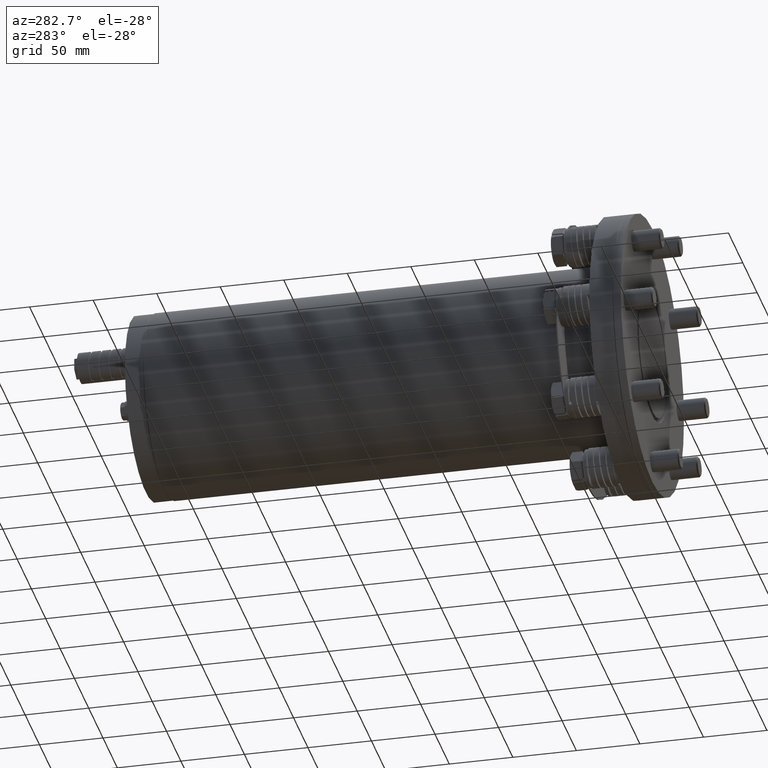
[diagram: clean part render]
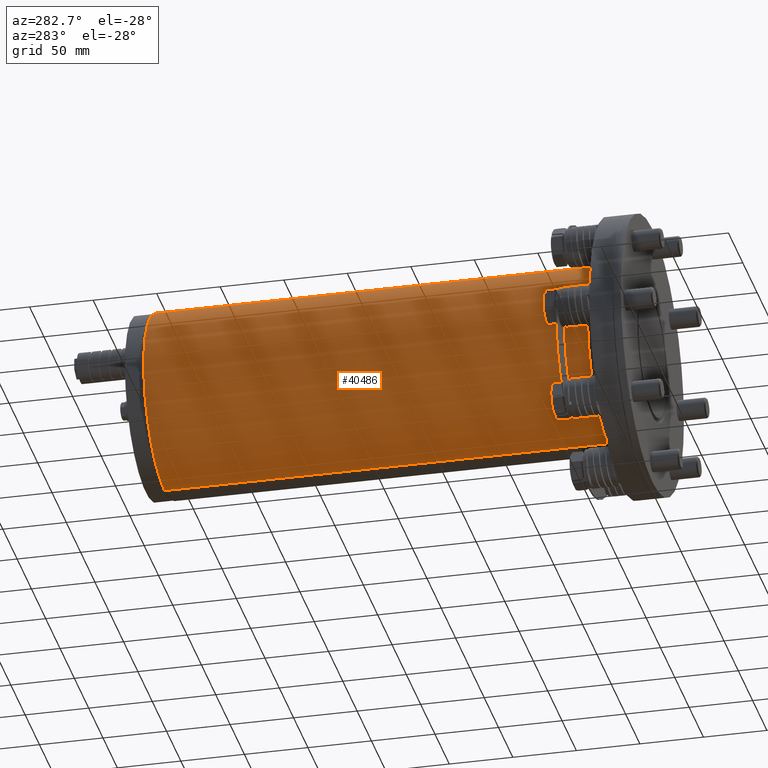
[diagram: same view with one face highlighted and labeled with its STEP entity id]
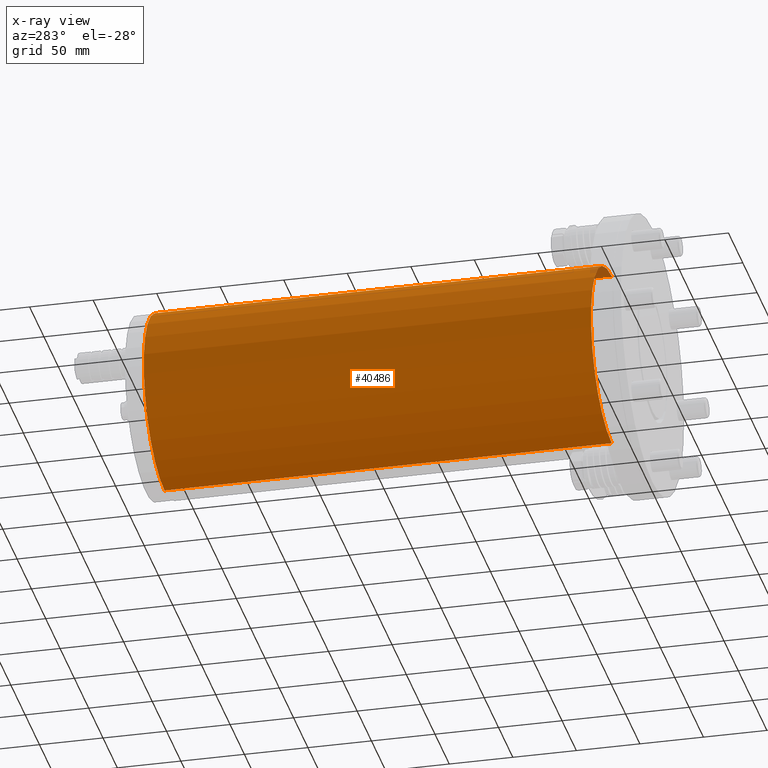
[diagram: x-ray of the same camera — body ghosted, the highlighted face saturated]
A machine part, auxiliary view. The second image highlights one B-rep face of the part: STEP entity #40486.
The next image is the same camera in x-ray: the body ghosted, the highlighted face saturated — about 0% of this face is hidden behind the body in this view.
In plain terms, the highlighted cylindrical surface (partial cylindrical patch) has radius 72.5 mm, axis along (0, -1, 0).
Its self-contained STEP definition (entity closure, byte-faithful):
#90 = CARTESIAN_POINT ( 'NONE',  ( 2.275647710163277100E-014, 384.0000000000000000, 72.50000000000000000 ) ) ;
#2379 = VERTEX_POINT ( 'NONE', #51011 ) ;
#2553 = VERTEX_POINT ( 'NONE', #90 ) ;
#5803 = CYLINDRICAL_SURFACE ( 'NONE', #70535, 72.50000000000000000 ) ;
#5825 = FACE_OUTER_BOUND ( 'NONE', #39989, .T. ) ;
#6690 = AXIS2_PLACEMENT_3D ( 'NONE', #64390, #64394, #64396 ) ;
#6715 = AXIS2_PLACEMENT_3D ( 'NONE', #53300, #53307, #53308 ) ;
#11780 = DIRECTION ( 'NONE',  ( 0.0000000000000000000, 0.0000000000000000000, -1.000000000000000000 ) ) ;
#11781 = DIRECTION ( 'NONE',  ( 0.0000000000000000000, -1.000000000000000000, 0.0000000000000000000 ) ) ;
#11782 = CARTESIAN_POINT ( 'NONE',  ( 1.387778780781446000E-014, 384.0000000000000000, -2.785665071561700000E-030 ) ) ;
#15430 = ORIENTED_EDGE ( 'NONE', *, *, #59211, .T. ) ;
#15431 = ORIENTED_EDGE ( 'NONE', *, *, #59068, .T. ) ;
#15432 = ORIENTED_EDGE ( 'NONE', *, *, #58986, .F. ) ;
#15433 = ORIENTED_EDGE ( 'NONE', *, *, #59089, .F. ) ;
#39989 = EDGE_LOOP ( 'NONE', ( #15433, #15432, #15431, #15430 ) ) ;
#40486 = ADVANCED_FACE ( 'NONE', ( #5825 ), #5803, .T. ) ;
#47084 = CARTESIAN_POINT ( 'NONE',  ( 1.387778780781446000E-014, 384.0000000000000000, -72.50000000000000000 ) ) ;
#47094 = DIRECTION ( 'NONE',  ( 0.0000000000000000000, -1.000000000000000000, 0.0000000000000000000 ) ) ;
#47521 = CARTESIAN_POINT ( 'NONE',  ( 2.275647710163277100E-014, 384.0000000000000000, 72.50000000000000000 ) ) ;
#47522 = DIRECTION ( 'NONE',  ( 0.0000000000000000000, -1.000000000000000000, 0.0000000000000000000 ) ) ;
#49781 = VERTEX_POINT ( 'NONE', #71456 ) ;
#50425 = VERTEX_POINT ( 'NONE', #72704 ) ;
#51011 = CARTESIAN_POINT ( 'NONE',  ( 2.275647710163277100E-014, 32.00000000000000000, 72.50000000000000000 ) ) ;
#53300 = CARTESIAN_POINT ( 'NONE',  ( 1.387778780781446000E-014, 32.00000000000000000, -2.785665071561700000E-030 ) ) ;
#53307 = DIRECTION ( 'NONE',  ( 0.0000000000000000000, 1.000000000000000000, 0.0000000000000000000 ) ) ;
#53308 = DIRECTION ( 'NONE',  ( 0.0000000000000000000, 0.0000000000000000000, 1.000000000000000000 ) ) ;
#58986 = EDGE_CURVE ( 'NONE', #50425, #2553, #74813, .T. ) ;
#59068 = EDGE_CURVE ( 'NONE', #50425, #49781, #74838, .T. ) ;
#59089 = EDGE_CURVE ( 'NONE', #2553, #2379, #74856, .T. ) ;
#59211 = EDGE_CURVE ( 'NONE', #49781, #2379, #74916, .T. ) ;
#64390 = CARTESIAN_POINT ( 'NONE',  ( 1.387778780781446000E-014, 384.0000000000000000, -2.785665071561700000E-030 ) ) ;
#64394 = DIRECTION ( 'NONE',  ( 0.0000000000000000000, 1.000000000000000000, 0.0000000000000000000 ) ) ;
#64396 = DIRECTION ( 'NONE',  ( 0.0000000000000000000, 0.0000000000000000000, 1.000000000000000000 ) ) ;
#70535 = AXIS2_PLACEMENT_3D ( 'NONE', #11782, #11781, #11780 ) ;
#71456 = CARTESIAN_POINT ( 'NONE',  ( 1.387778780781446000E-014, 32.00000000000000000, -72.50000000000000000 ) ) ;
#72704 = CARTESIAN_POINT ( 'NONE',  ( 1.387778780781446000E-014, 384.0000000000000000, -72.50000000000000000 ) ) ;
#74813 = CIRCLE ( 'NONE', #6690, 72.50000000000000000 ) ;
#74838 = LINE ( 'NONE', #47084, #74850 ) ;
#74850 = VECTOR ( 'NONE', #47094, 1000.000000000000000 ) ;
#74856 = LINE ( 'NONE', #47521, #74861 ) ;
#74861 = VECTOR ( 'NONE', #47522, 1000.000000000000000 ) ;
#74916 = CIRCLE ( 'NONE', #6715, 72.50000000000000000 ) ;